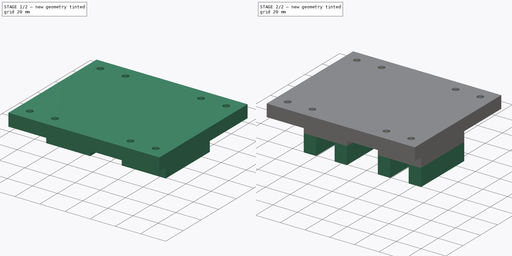
[diagram: build sequence overview — one tinted view per stage of 2, left to right]
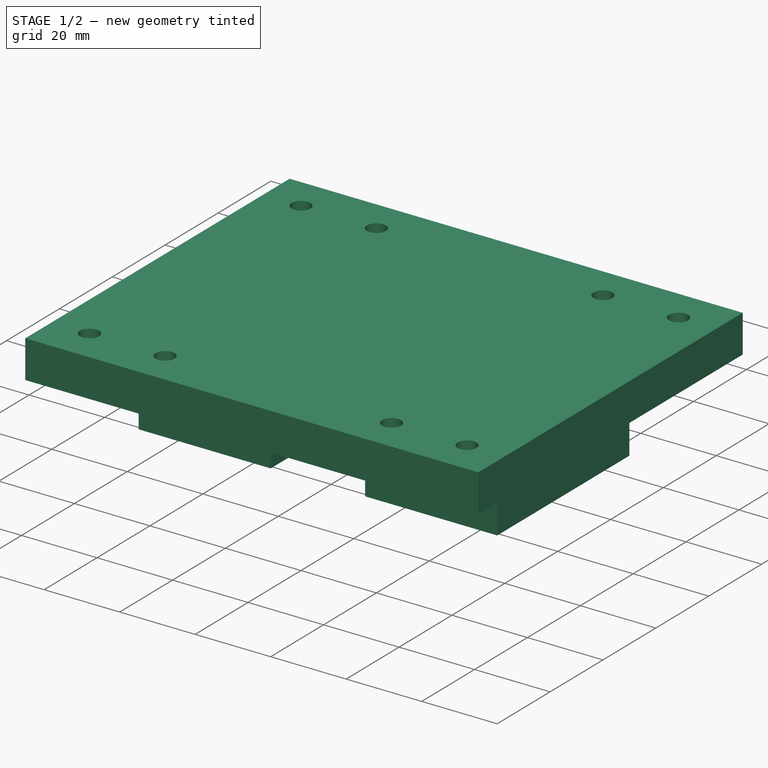
[diagram: stage 1 of 2 — iso view after this stage's code; geometry added in this stage tinted green]
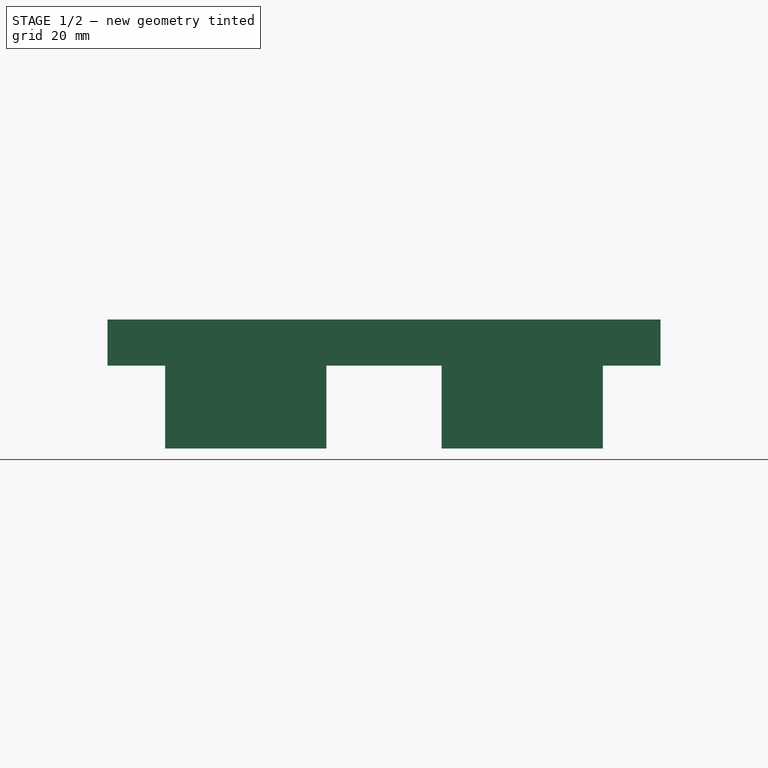
[diagram: stage 1 of 2 — front view after this stage's code; geometry added in this stage tinted green]
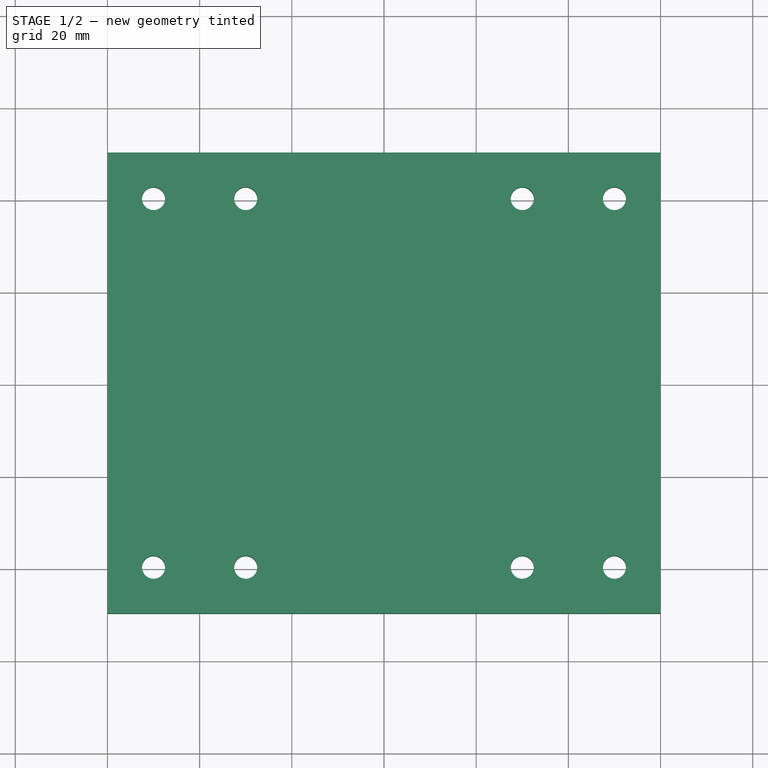
[diagram: stage 1 of 2 — top view after this stage's code; geometry added in this stage tinted green]
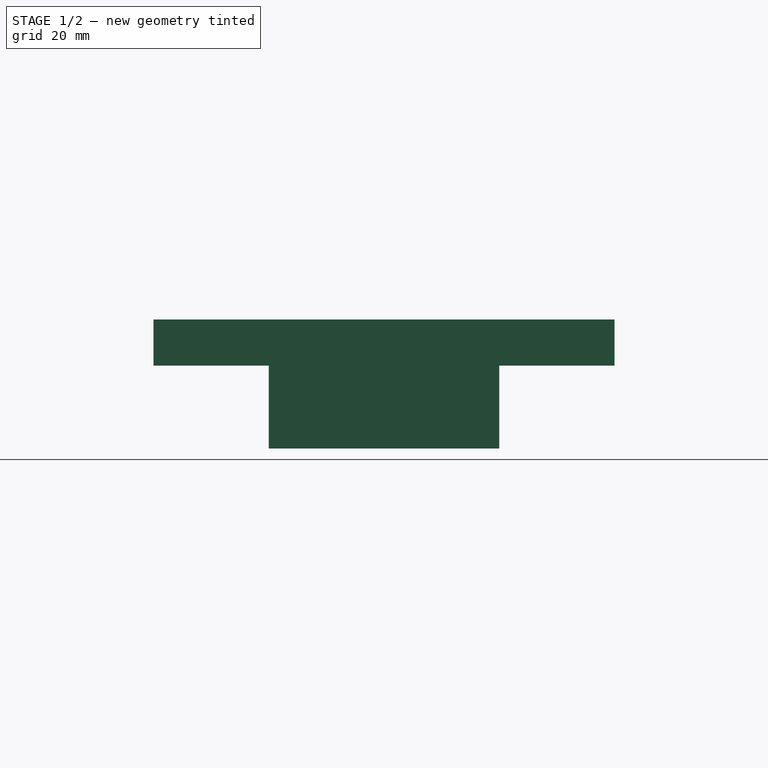
[diagram: stage 1 of 2 — right view after this stage's code; geometry added in this stage tinted green]
FCSTD DOCUMENT  (FreeCAD 0.19R)
Label: LINMOD_CARET
License: All rights reserved
LicenseURL: http://en.wikipedia.org/wiki/All_rights_reserved
objects: PartDesign::CoordinateSystem×5, Sketcher::SketchObject×3, PartDesign::Pad×3, PartDesign::Body×1
note: 15 computed .brp shape members not serialized (recipe doc carries the construction recipe); baked Part::Feature solids carry a one-line shape summary decoded from their .brp

FEATURE [Sketcher::SketchObject] Sketch
  FullyConstrained = true
  MapMode = 5
  Support = -> [XY_Plane]
  sketch-geometry (12):
    g0: LineSegment StartX=-60 StartY=50 StartZ=0 EndX=60 EndY=50 EndZ=0
    g1: LineSegment StartX=60 StartY=50 StartZ=0 EndX=60 EndY=-50 EndZ=0
    g2: LineSegment StartX=60 StartY=-50 StartZ=0 EndX=-60 EndY=-50 EndZ=0
    g3: LineSegment StartX=-60 StartY=-50 StartZ=0 EndX=-60 EndY=50 EndZ=0
    g4: Circle CenterX=-50 CenterY=40 CenterZ=0 NormalX=0 NormalY=0 NormalZ=1 AngleXU=0 Radius=2.5
    g5: Circle CenterX=-30 CenterY=40 CenterZ=0 NormalX=0 NormalY=0 NormalZ=1 AngleXU=0 Radius=2.5
    g6: Circle CenterX=30 CenterY=40 CenterZ=0 NormalX=0 NormalY=0 NormalZ=1 AngleXU=0 Radius=2.5
    g7: Circle CenterX=50 CenterY=40 CenterZ=0 NormalX=0 NormalY=0 NormalZ=1 AngleXU=0 Radius=2.5
    g8: Circle CenterX=-50 CenterY=-40 CenterZ=0 NormalX=0 NormalY=0 NormalZ=1 AngleXU=0 Radius=2.5
    g9: Circle CenterX=-30 CenterY=-40 CenterZ=0 NormalX=0 NormalY=0 NormalZ=1 AngleXU=0 Radius=2.5
    g10: Circle CenterX=30 CenterY=-40 CenterZ=0 NormalX=0 NormalY=0 NormalZ=1 AngleXU=0 Radius=2.5
    g11: Circle CenterX=50 CenterY=-40 CenterZ=0 NormalX=0 NormalY=0 NormalZ=1 AngleXU=0 Radius=2.5
  constraints (28):
    c: Coincident(g0,g1)
    c: Coincident(g1,g2)
    c: Coincident(g2,g3)
    c: Coincident(g3,g0)
    c: Horizontal(g0)
    c: Vertical(g1)
    c: DistanceX(g0,g0) = 120
    c: DistanceY(g1,g1) = 100
    c: Symmetric(g2,g1,g-2)
    c: Symmetric(g2,g0,g-1)
    c: Equal(g11,g10)
    c: Equal(g10,g9)
    c: Equal(g9,g8)
    c: Equal(g8,g5)
    c: Equal(g5,g4)
    c: Equal(g4,g6)
    c: Equal(g6,g7)
    c: Diameter(g7) = 5
    c: Symmetric(g5,g6,g-2)
    c: Symmetric(g7,g4,g-2)
    c: Symmetric(g9,g10,g-2)
    c: Symmetric(g11,g8,g-2)
    c: Symmetric(g10,g6,g-1)
    c: Symmetric(g11,g7,g-1)
    c: DistanceY(g11,g7) = 80
    c: DistanceY(g10,g6) = 80
    c: DistanceX(g5,g6) = 60
    c: DistanceX(g8,g11) = 100
FEATURE [PartDesign::Pad] Pad
  Direction = (1,1,1)
  Length = 10
  Length2 = 100
  Profile = -> Sketch
  Type = 0
FEATURE [Sketcher::SketchObject] Sketch001
  FullyConstrained = true
  MapMode = 5
  Placement = pos=(0,0,0) rot=(1,0,0;3.14159rad)
  Support = -> [Pad]
  sketch-geometry (8):
    g0: LineSegment StartX=-47.5 StartY=25 StartZ=0 EndX=-12.5 EndY=25 EndZ=0
    g1: LineSegment StartX=-12.5 StartY=25 StartZ=0 EndX=-12.5 EndY=-25 EndZ=0
    g2: LineSegment StartX=-12.5 StartY=-25 StartZ=0 EndX=-47.5 EndY=-25 EndZ=0
    g3: LineSegment StartX=-47.5 StartY=-25 StartZ=0 EndX=-47.5 EndY=25 EndZ=0
    g4: LineSegment StartX=12.5 StartY=25 StartZ=0 EndX=47.5 EndY=25 EndZ=0
    g5: LineSegment StartX=47.5 StartY=25 StartZ=0 EndX=47.5 EndY=-25 EndZ=0
    g6: LineSegment StartX=47.5 StartY=-25 StartZ=0 EndX=12.5 EndY=-25 EndZ=0
    g7: LineSegment StartX=12.5 StartY=-25 StartZ=0 EndX=12.5 EndY=25 EndZ=0
  constraints (21):
    c: Coincident(g0,g1)
    c: Coincident(g1,g2)
    c: Coincident(g2,g3)
    c: Coincident(g3,g0)
    c: Horizontal(g0)
    c: Horizontal(g2)
    c: Vertical(g1)
    c: Vertical(g3)
    c: Coincident(g4,g5)
    c: Coincident(g5,g6)
    c: Coincident(g6,g7)
    c: Coincident(g7,g4)
    c: Horizontal(g6)
    c: Vertical(g5)
    c: Symmetric(g0,g4,g-2)
    c: Symmetric(g4,g0,g-2)
    c: Equal(g7,g1)
    c: DistanceX(g4,g4) = 35
    c: Symmetric(g6,g4,g-1)
    c: DistanceY(g5,g5) = 50
    c: DistanceX(g2,g5) = 95
FEATURE [PartDesign::Pad] Pad001
  BaseFeature = -> Pad
  Direction = (1,1,1)
  Length = 18
  Length2 = 100
  Profile = -> Sketch001
  Type = 0
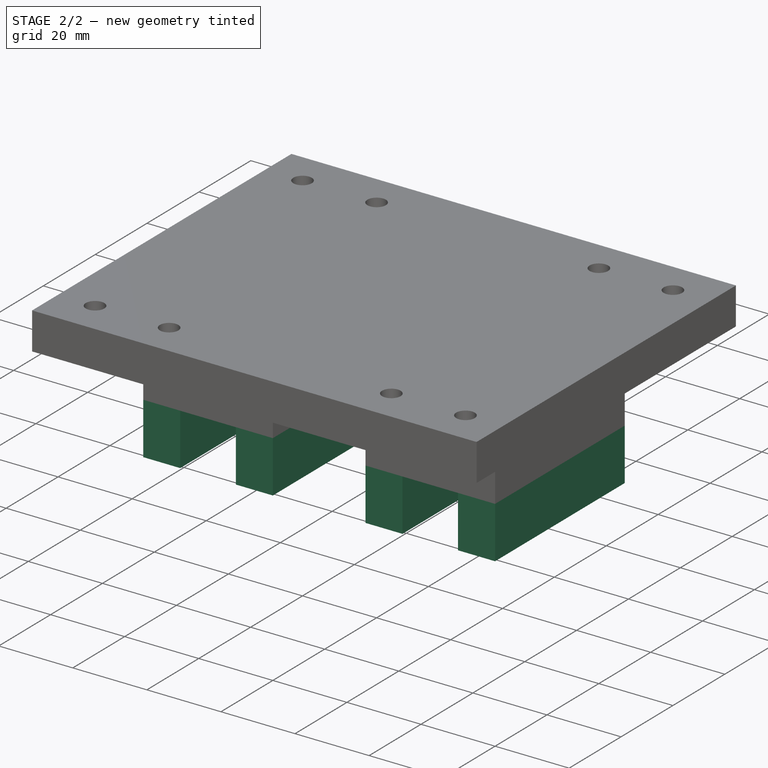
[diagram: stage 2 of 2 — iso view after this stage's code; geometry added in this stage tinted green]
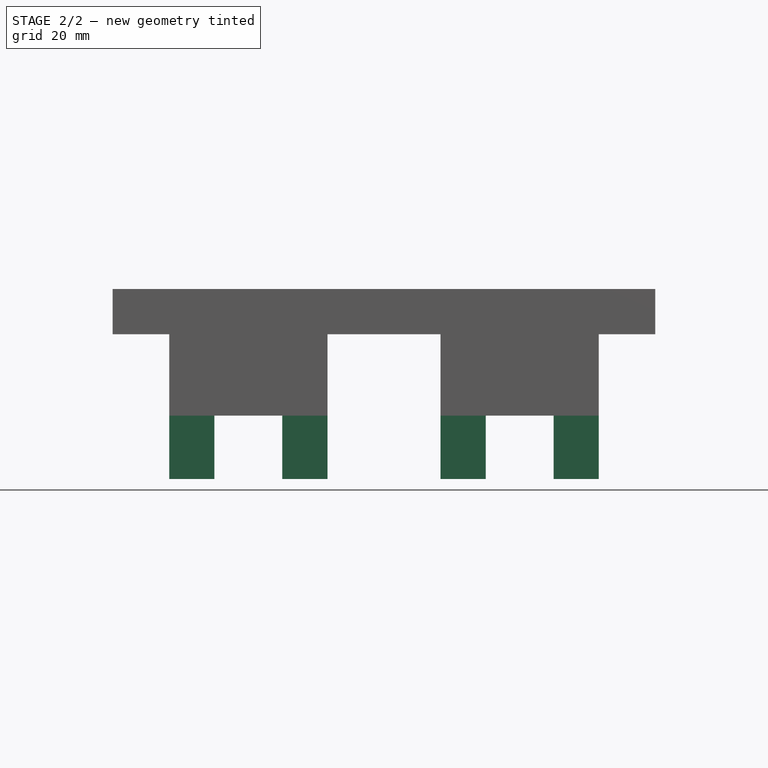
[diagram: stage 2 of 2 — front view after this stage's code; geometry added in this stage tinted green]
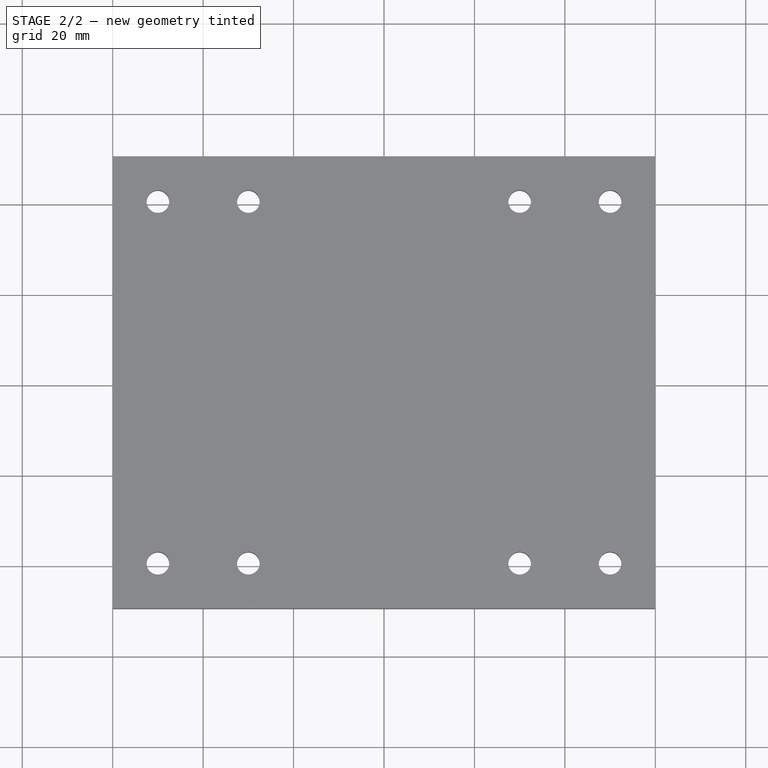
[diagram: stage 2 of 2 — top view after this stage's code; geometry added in this stage tinted green]
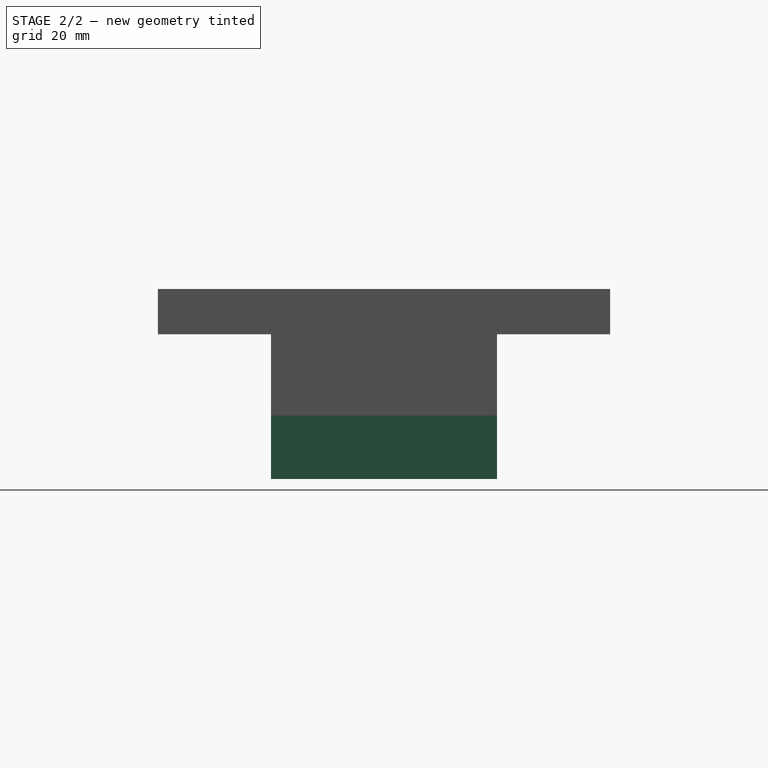
[diagram: stage 2 of 2 — right view after this stage's code; geometry added in this stage tinted green]
FEATURE [Sketcher::SketchObject] Sketch002
  ExternalGeometry = -> [Pad001]
  FullyConstrained = true
  MapMode = 5
  Placement = pos=(0,0,-18) rot=(1,0,0;3.14159rad)
  Support = -> [Pad001]
  sketch-geometry (16):
    g0: LineSegment StartX=-47.5 StartY=25 StartZ=0 EndX=-37.5 EndY=25 EndZ=0
    g1: LineSegment StartX=-37.5 StartY=25 StartZ=0 EndX=-37.5 EndY=-25 EndZ=0
    g2: LineSegment StartX=-37.5 StartY=-25 StartZ=0 EndX=-47.5 EndY=-25 EndZ=0
    g3: LineSegment StartX=-47.5 StartY=-25 StartZ=0 EndX=-47.5 EndY=25 EndZ=0
    g4: LineSegment StartX=-22.5 StartY=25 StartZ=0 EndX=-12.5 EndY=25 EndZ=0
    g5: LineSegment StartX=-12.5 StartY=25 StartZ=0 EndX=-12.5 EndY=-25 EndZ=0
    g6: LineSegment StartX=-12.5 StartY=-25 StartZ=0 EndX=-22.5 EndY=-25 EndZ=0
    g7: LineSegment StartX=-22.5 StartY=-25 StartZ=0 EndX=-22.5 EndY=25 EndZ=0
    g8: LineSegment StartX=12.5 StartY=25 StartZ=0 EndX=22.5 EndY=25 EndZ=0
    g9: LineSegment StartX=22.5 StartY=25 StartZ=0 EndX=22.5 EndY=-25 EndZ=0
    g10: LineSegment StartX=22.5 StartY=-25 StartZ=0 EndX=12.5 EndY=-25 EndZ=0
    g11: LineSegment StartX=12.5 StartY=-25 StartZ=0 EndX=12.5 EndY=25 EndZ=0
    g12: LineSegment StartX=37.5 StartY=25 StartZ=0 EndX=47.5 EndY=25 EndZ=0
    g13: LineSegment StartX=47.5 StartY=25 StartZ=0 EndX=47.5 EndY=-25 EndZ=0
    g14: LineSegment StartX=47.5 StartY=-25 StartZ=0 EndX=37.5 EndY=-25 EndZ=0
    g15: LineSegment StartX=37.5 StartY=-25 StartZ=0 EndX=37.5 EndY=25 EndZ=0
  constraints (40):
    c: Coincident(g0,g1)
    c: Coincident(g1,g2)
    c: Coincident(g2,g3)
    c: Coincident(g3,g0)
    c: Horizontal(g0)
    c: Horizontal(g2)
    c: Vertical(g1)
    c: Coincident(g4,g5)
    c: Coincident(g5,g6)
    c: Coincident(g6,g7)
    c: Coincident(g7,g4)
    c: Horizontal(g4)
    c: Horizontal(g6)
    c: Vertical(g7)
    c: Coincident(g8,g9)
    c: Coincident(g9,g10)
    c: Coincident(g10,g11)
    c: Coincident(g11,g8)
    c: Horizontal(g8)
    c: Horizontal(g10)
    c: Vertical(g9)
    c: Coincident(g12,g13)
    c: Coincident(g13,g14)
    c: Coincident(g14,g15)
    c: Coincident(g15,g12)
    c: Horizontal(g12)
    c: Horizontal(g14)
    c: Vertical(g15)
    c: Coincident(g12,g-4)
    c: Coincident(g13,g-4)
    c: Coincident(g8,g-5)
    c: Coincident(g10,g-5)
    c: Equal(g8,g12)
    c: Equal(g12,g4)
    c: Equal(g4,g0)
    c: DistanceX(g8,g8) = 10
    c: Coincident(g4,g-6)
    c: Coincident(g5,g-6)
    c: Coincident(g0,g-3)
    c: Coincident(g2,g-3)
FEATURE [PartDesign::Pad] Pad002
  BaseFeature = -> Pad001
  Direction = (1,1,1)
  Length = 14
  Length2 = 100
  Profile = -> Sketch002
  Type = 0
FEATURE [PartDesign::CoordinateSystem] LCS_m1
  AttacherType = Attacher::AttachEngine3D
  AttachmentOffset = pos=(30,-25,0) rot=(0,0,1;0rad)
  MapMode = 5
  Placement = pos=(30,25,-18) rot=(1,0,0;3.14159rad)
  Support = -> [Pad002]
FEATURE [PartDesign::CoordinateSystem] LCS_h1
  AttacherType = Attacher::AttachEngine3D
  MapMode = 11
  Placement = pos=(50,-40,10) rot=(0,0,1;1.5708rad)
  Support = -> [Pad002]
FEATURE [PartDesign::CoordinateSystem] LCS_h2
  AttacherType = Attacher::AttachEngine3D
  MapMode = 11
  Placement = pos=(-50,-40,10) rot=(0,0,1;1.5708rad)
  Support = -> [Pad002]
FEATURE [PartDesign::CoordinateSystem] LCS_1
  AttacherType = Attacher::AttachEngine3D
  MapMode = 11
  Placement = pos=(30,-40,10) rot=(0,0,1;1.5708rad)
  Support = -> [Pad002]
FEATURE [PartDesign::CoordinateSystem] LCS_2
  AttacherType = Attacher::AttachEngine3D
  MapMode = 11
  Placement = pos=(-30,-40,10) rot=(0,0,1;1.5708rad)
  Support = -> [Pad002]
FEATURE [PartDesign::Body] Body
  Group = -> [Sketch,Pad,Sketch001,Pad001,Sketch002,Pad002,LCS_m1,LCS_h1,LCS_h2,LCS_1,LCS_2]
  Origin = -> Origin
  Tip = -> Pad002
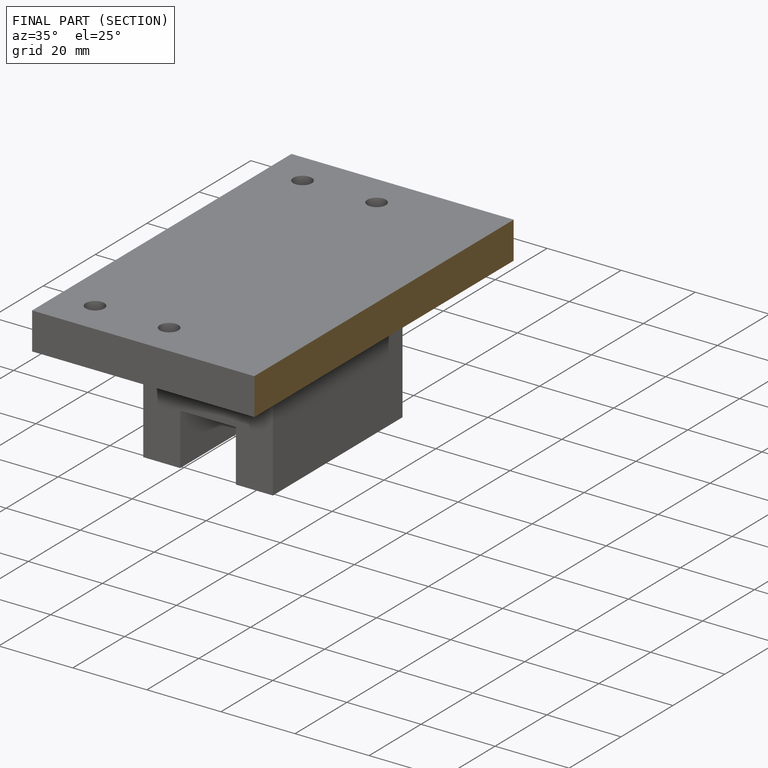
[diagram: finished part — half-section view (interior)]
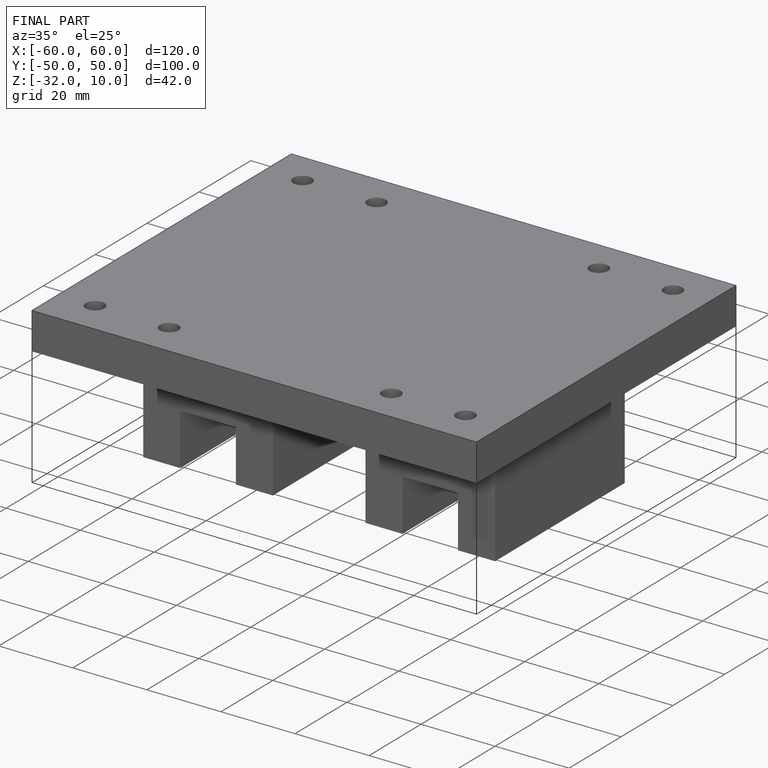
[diagram: finished part — iso view with bounding-box wireframe]
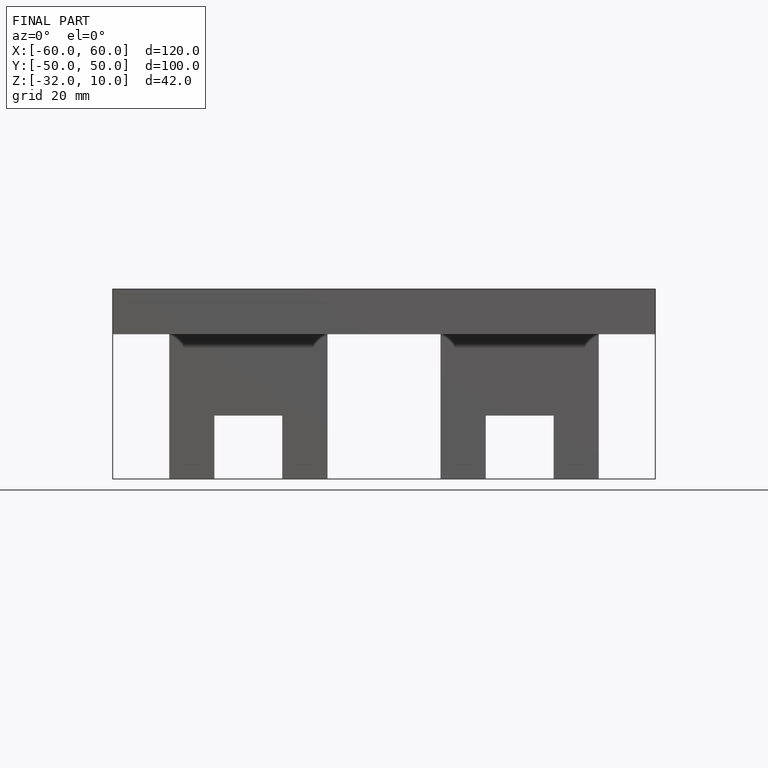
[diagram: finished part — front view with bounding-box wireframe]
